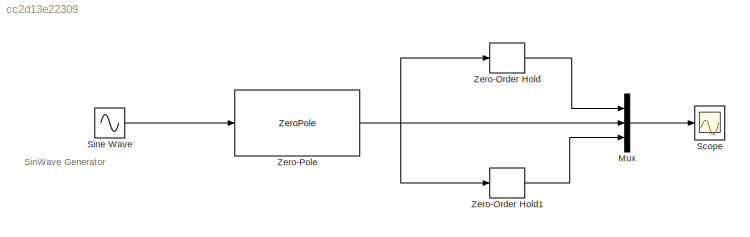
MODEL slx_cc2d13e22309
KIND model
CONFIG AbsTol = auto
CONFIG EnableMultiTasking = off
CONFIG FixedStep = auto
CONFIG MaxStep = auto
CONFIG MinStep = auto
CONFIG RelTol = 1e-3
CONFIG SampleTimeConstraint = Unconstrained
CONFIG Solver = VariableStepAuto
CONFIG SolverName = VariableStepAuto
CONFIG StartTime = 0.0
CONFIG StopTime = 10.0
BLOCK [Mux] Mux
  DisplayOption = bar
  Inputs = 3
  Ports = [3, 1]
BLOCK [Scope] Scope 
  NumInputPorts = 1
  Ports = [1]
  ScopeSpecificationString = Simulink.scopes.TimeScopeBlockCfg('CurrentConfiguration', extmgr.ConfigurationSet(extmgr.Configuration('Core','General UI',true),extmgr.Configuration('Core','Source UI',true),extmgr.Configuration('Sources','WiredSimulink',true,'DataLoggingVariableName','Sim_data','DataLogging',true,'DataLoggingLimitDataPoints',true,'DataLoggingSaveFormat','Array','SampleTime','2 * pi *0.001'),extmgr.Configuration(...<+2007ch>
BLOCK [Sin] Sine Wave
  Amplitude = 3
  Frequency = 2*pi
  Ports = [0, 1]
  Samples = 2*pi
BLOCK [ZeroOrderHold] Zero-Order Hold 
  SampleTime = 0.1
BLOCK [ZeroOrderHold] Zero-Order Hold1 
  SampleTime = 0.5
BLOCK [ZeroPole] Zero-Pole 
  Poles = [-1 -7]
  Zeros = [3]
ANNOTATION (root): SinWave Generator
LINE Mux:1 -> Scope :1
LINE Sine Wave:1 -> Zero-Pole :1
LINE Zero-Order Hold :1 -> Mux:1
LINE Zero-Order Hold1 :1 -> Mux:3
NET Zero-Pole :1 -> Mux:2, Zero-Order Hold :1, Zero-Order Hold1 :1
note: NET lines group one-source signal fan-out (src -> all destinations, sorted); 1:1 wires keep LINE
